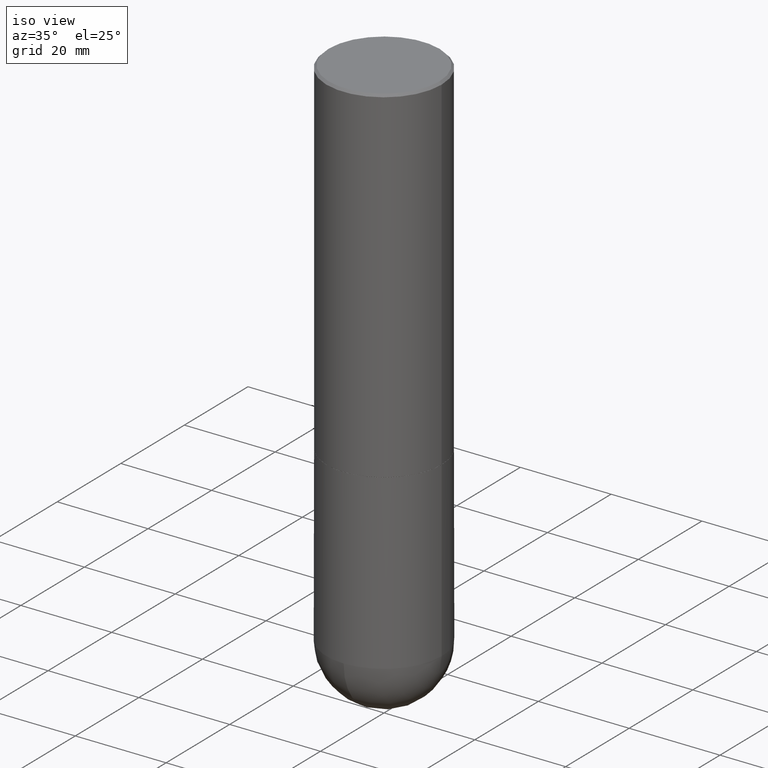
[diagram: clean part render]
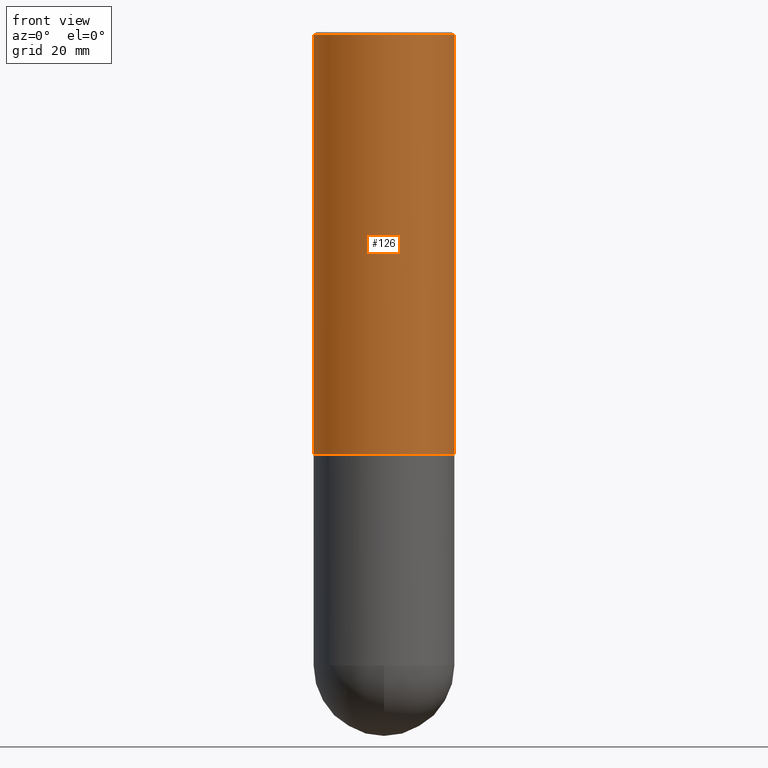
[diagram: tour spotlight — one face highlighted and labeled with its STEP entity id]
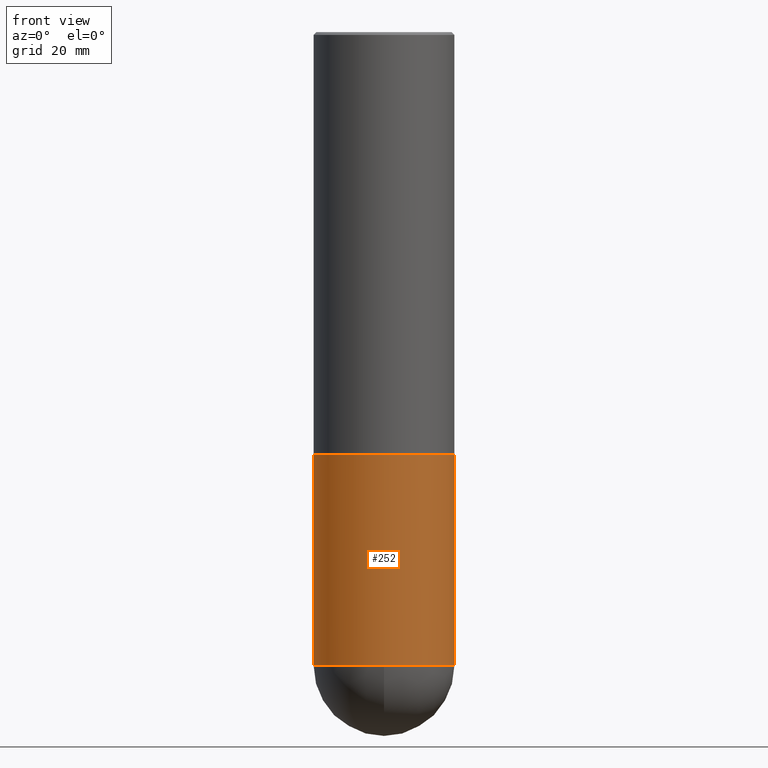
[diagram: tour spotlight — one face highlighted and labeled with its STEP entity id]
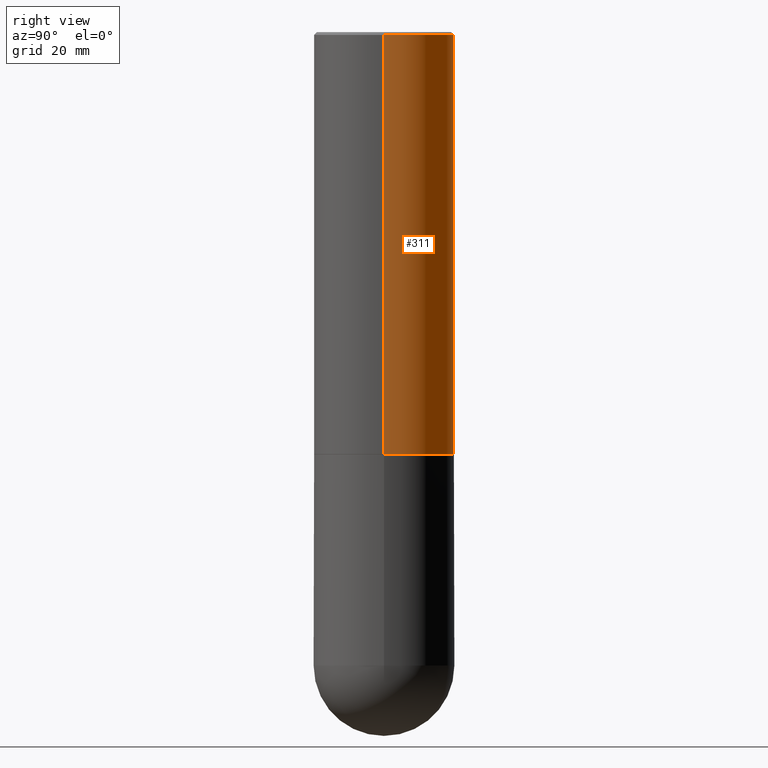
[diagram: tour spotlight — one face highlighted and labeled with its STEP entity id]
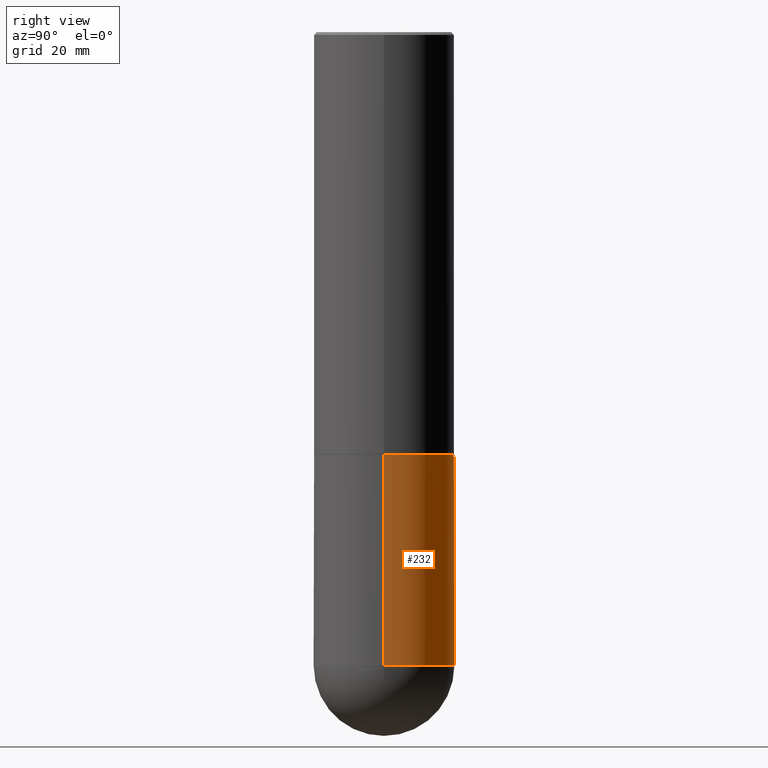
[diagram: tour spotlight — one face highlighted and labeled with its STEP entity id]
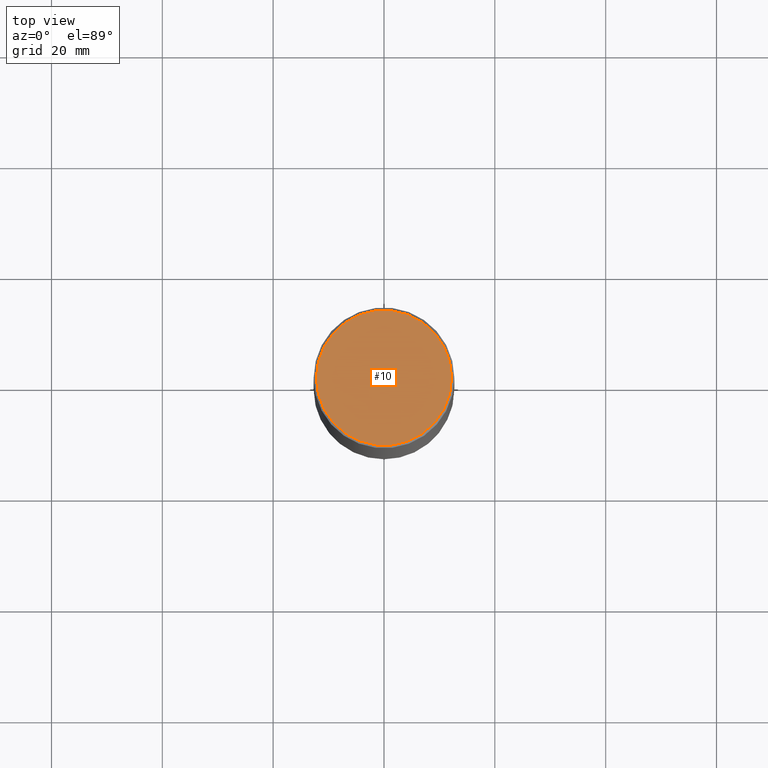
[diagram: tour spotlight — one face highlighted and labeled with its STEP entity id]
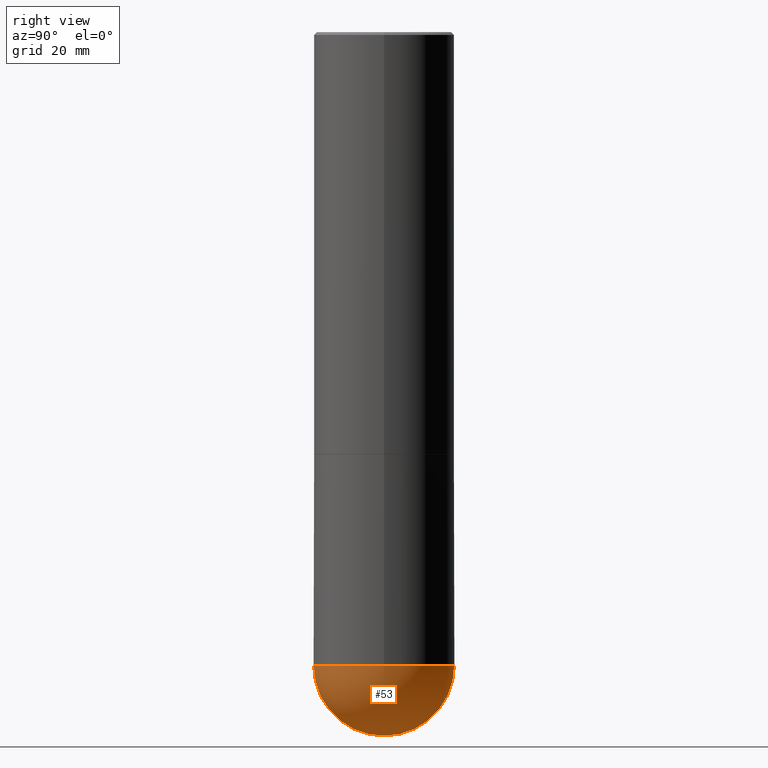
[diagram: tour spotlight — one face highlighted and labeled with its STEP entity id]
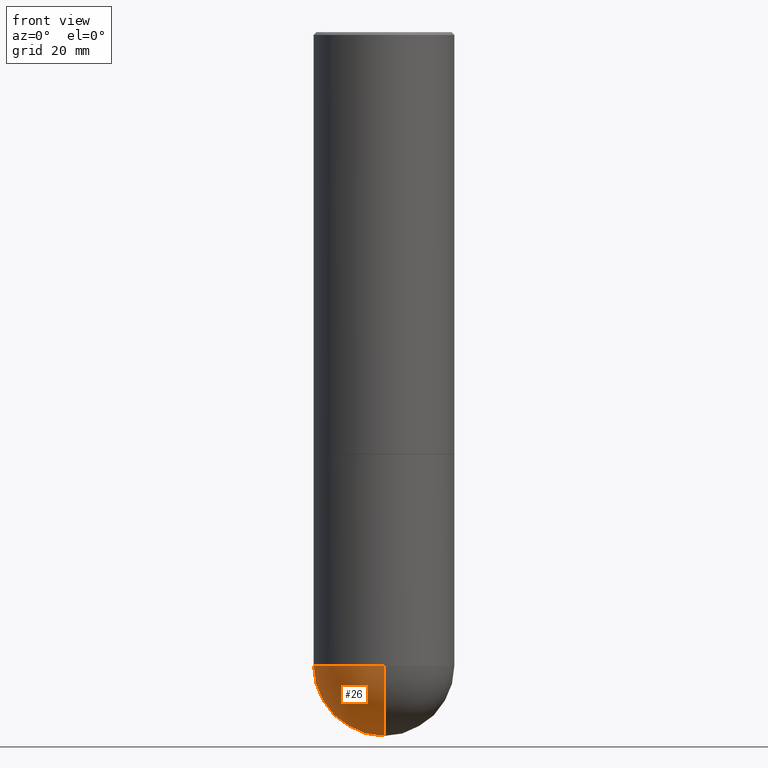
[diagram: tour spotlight — one face highlighted and labeled with its STEP entity id]
A machine part: a face-by-face anatomy tour. The part has 13 B-rep faces; the first image is the clean iso view, then the 7 largest visible faces are spotlighted one at a time (largest first), each with its STEP entity span.

Face 1 — front view, entity #126. In plain terms, the highlighted cylindrical surface (partial cylindrical patch) has radius 12.7 mm, axis along (-0, 0, 1).
Definition (entity closure, byte-faithful):
#2 = DIRECTION ( 'NONE',  ( 1.000000000000000000, -6.982962677686267499E-15, 4.876176775795935793E-29 ) ) ;
#20 = VERTEX_POINT ( 'NONE', #243 ) ;
#25 = VECTOR ( 'NONE', #66, 39.37007874015748143 ) ;
#38 = EDGE_CURVE ( 'NONE', #151, #20, #412, .T. ) ;
#66 = DIRECTION ( 'NONE',  ( -2.445468806185136877E-29, 3.491481338843145188E-15, 1.000000000000000000 ) ) ;
#70 = EDGE_CURVE ( 'NONE', #20, #152, #313, .T. ) ;
#71 = CARTESIAN_POINT ( 'NONE',  ( 0.5000000000000002220, -1.396243387403372986E-14, -2.999000000000000554 ) ) ;
#74 = AXIS2_PLACEMENT_3D ( 'NONE', #224, #103, #2 ) ;
#82 = AXIS2_PLACEMENT_3D ( 'NONE', #216, #193, #188 ) ;
#89 = ORIENTED_EDGE ( 'NONE', *, *, #345, .T. ) ;
#103 = DIRECTION ( 'NONE',  ( -2.445468806185136597E-29, 3.491481338843145583E-15, 1.000000000000000000 ) ) ;
#109 = CYLINDRICAL_SURFACE ( 'NONE', #74, 0.5000000000000001110 ) ;
#126 = ADVANCED_FACE ( 'NONE', ( #316 ), #109, .T. ) ;
#151 = VERTEX_POINT ( 'NONE', #248 ) ;
#152 = VERTEX_POINT ( 'NONE', #160 ) ;
#160 = CARTESIAN_POINT ( 'NONE',  ( 0.5000000000000000000, -3.500078625662629079E-15, -0.02000000000000010797 ) ) ;
#188 = DIRECTION ( 'NONE',  ( 1.000000000000000000, -6.982962677686267499E-15, 0.000000000000000000 ) ) ;
#193 = DIRECTION ( 'NONE',  ( -2.445468806185136597E-29, 3.491481338843145583E-15, 1.000000000000000000 ) ) ;
#216 = CARTESIAN_POINT ( 'NONE',  ( 7.333960949749226429E-29, -1.047095253519059492E-14, -2.999000000000000554 ) ) ;
#218 = VECTOR ( 'NONE', #333, 39.37007874015748143 ) ;
#224 = CARTESIAN_POINT ( 'NONE',  ( 0.000000000000000000, 0.000000000000000000, 0.000000000000000000 ) ) ;
#231 = CARTESIAN_POINT ( 'NONE',  ( 0.5000000000000001110, -3.491481338843134539E-15, 2.438088387897968457E-29 ) ) ;
#241 = EDGE_CURVE ( 'NONE', #151, #270, #245, .T. ) ;
#243 = CARTESIAN_POINT ( 'NONE',  ( -0.5000000000000000000, 3.421651712066270057E-15, -0.02000000000000010797 ) ) ;
#245 = CIRCLE ( 'NONE', #82, 0.5000000000000002220 ) ;
#248 = CARTESIAN_POINT ( 'NONE',  ( -0.5000000000000002220, -1.717677402183225026E-15, -2.999000000000000554 ) ) ;
#261 = ORIENTED_EDGE ( 'NONE', *, *, #38, .F. ) ;
#270 = VERTEX_POINT ( 'NONE', #71 ) ;
#292 = AXIS2_PLACEMENT_3D ( 'NONE', #371, #411, #404 ) ;
#303 = EDGE_LOOP ( 'NONE', ( #261, #364, #89, #363 ) ) ;
#313 = CIRCLE ( 'NONE', #292, 0.5000000000000000000 ) ;
#316 = FACE_OUTER_BOUND ( 'NONE', #303, .T. ) ;
#328 = LINE ( 'NONE', #231, #218 ) ;
#333 = DIRECTION ( 'NONE',  ( -2.445468806185136877E-29, 3.491481338843145188E-15, 1.000000000000000000 ) ) ;
#345 = EDGE_CURVE ( 'NONE', #270, #152, #328, .T. ) ;
#347 = CARTESIAN_POINT ( 'NONE',  ( -0.5000000000000001110, 3.552713678800501718E-15, -2.459467545127453732E-29 ) ) ;
#363 = ORIENTED_EDGE ( 'NONE', *, *, #70, .F. ) ;
#364 = ORIENTED_EDGE ( 'NONE', *, *, #241, .T. ) ;
#371 = CARTESIAN_POINT ( 'NONE',  ( 4.890937612370299433E-31, -6.982962677686328587E-17, -0.02000000000000010797 ) ) ;
#404 = DIRECTION ( 'NONE',  ( 1.000000000000000000, -6.982962677686266711E-15, 0.000000000000000000 ) ) ;
#411 = DIRECTION ( 'NONE',  ( -2.445468806185136597E-29, 3.491481338843145583E-15, 1.000000000000000000 ) ) ;
#412 = LINE ( 'NONE', #347, #25 ) ;

Face 2 — front view, entity #252. In plain terms, the highlighted cylindrical surface (partial cylindrical patch) has radius 12.7 mm, axis along (-0, 0, 1).
Definition (entity closure, byte-faithful):
#12 = DIRECTION ( 'NONE',  ( -2.445468806185136877E-29, 3.491481338843145188E-15, 1.000000000000000000 ) ) ;
#40 = AXIS2_PLACEMENT_3D ( 'NONE', #341, #308, #43 ) ;
#43 = DIRECTION ( 'NONE',  ( 1.000000000000000000, -6.982962677686266711E-15, 0.000000000000000000 ) ) ;
#73 = CARTESIAN_POINT ( 'NONE',  ( 0.5000000000000000000, -1.658453635950493077E-14, -4.500000000000000000 ) ) ;
#81 = CARTESIAN_POINT ( 'NONE',  ( -3.552713678800393250E-15, -0.5000000000000160982, -4.499999999999998224 ) ) ;
#87 = EDGE_LOOP ( 'NONE', ( #114, #202, #195, #362, #358 ) ) ;
#105 = EDGE_CURVE ( 'NONE', #296, #179, #191, .T. ) ;
#106 = CYLINDRICAL_SURFACE ( 'NONE', #129, 0.5000000000000000000 ) ;
#114 = ORIENTED_EDGE ( 'NONE', *, *, #192, .F. ) ;
#118 = LINE ( 'NONE', #170, #342 ) ;
#129 = AXIS2_PLACEMENT_3D ( 'NONE', #356, #388, #219 ) ;
#137 = CARTESIAN_POINT ( 'NONE',  ( 7.336406418555409790E-29, -1.047444401652943635E-14, -3.000000000000000444 ) ) ;
#144 = CARTESIAN_POINT ( 'NONE',  ( 0.5000000000000000000, -1.396592535537257129E-14, -3.000000000000000444 ) ) ;
#161 = FACE_OUTER_BOUND ( 'NONE', #87, .T. ) ;
#164 = DIRECTION ( 'NONE',  ( -2.445468806185136877E-29, 3.491481338843145188E-15, 1.000000000000000000 ) ) ;
#170 = CARTESIAN_POINT ( 'NONE',  ( 0.5000000000000000000, -3.491481338843133355E-15, 2.438088387897967896E-29 ) ) ;
#179 = VERTEX_POINT ( 'NONE', #73 ) ;
#191 = CIRCLE ( 'NONE', #40, 0.5000000000000000000 ) ;
#192 = EDGE_CURVE ( 'NONE', #275, #204, #223, .T. ) ;
#195 = ORIENTED_EDGE ( 'NONE', *, *, #105, .T. ) ;
#196 = CARTESIAN_POINT ( 'NONE',  ( 1.100460962783311469E-28, -1.571166602479415690E-14, -4.500000000000000000 ) ) ;
#202 = ORIENTED_EDGE ( 'NONE', *, *, #407, .T. ) ;
#203 = DIRECTION ( 'NONE',  ( 1.000000000000000000, -6.982962677686266711E-15, 0.000000000000000000 ) ) ;
#204 = VERTEX_POINT ( 'NONE', #319 ) ;
#208 = EDGE_CURVE ( 'NONE', #204, #402, #263, .T. ) ;
#219 = DIRECTION ( 'NONE',  ( 1.000000000000000000, -6.982962677686266711E-15, 4.876176775795935793E-29 ) ) ;
#223 = LINE ( 'NONE', #381, #321 ) ;
#237 = CIRCLE ( 'NONE', #301, 0.5000000000000000000 ) ;
#252 = ADVANCED_FACE ( 'NONE', ( #161 ), #106, .T. ) ;
#263 = CIRCLE ( 'NONE', #389, 0.5000000000000000000 ) ;
#275 = VERTEX_POINT ( 'NONE', #331 ) ;
#283 = DIRECTION ( 'NONE',  ( 1.000000000000000000, -6.982962677686266711E-15, 0.000000000000000000 ) ) ;
#288 = DIRECTION ( 'NONE',  ( -2.445468806185136597E-29, 3.491481338843145583E-15, 1.000000000000000000 ) ) ;
#296 = VERTEX_POINT ( 'NONE', #81 ) ;
#301 = AXIS2_PLACEMENT_3D ( 'NONE', #196, #302, #203 ) ;
#302 = DIRECTION ( 'NONE',  ( -2.445468806185136597E-29, 3.491481338843145583E-15, 1.000000000000000000 ) ) ;
#308 = DIRECTION ( 'NONE',  ( -2.445468806185136597E-29, 3.491481338843145583E-15, 1.000000000000000000 ) ) ;
#319 = CARTESIAN_POINT ( 'NONE',  ( -0.5000000000000000000, -9.540341341861294907E-15, -3.000000000000000444 ) ) ;
#321 = VECTOR ( 'NONE', #164, 39.37007874015748143 ) ;
#331 = CARTESIAN_POINT ( 'NONE',  ( -0.5000000000000000000, -9.540341341861298062E-15, -4.500000000000000000 ) ) ;
#335 = EDGE_CURVE ( 'NONE', #179, #402, #118, .T. ) ;
#341 = CARTESIAN_POINT ( 'NONE',  ( 1.100460962783311469E-28, -1.571166602479415690E-14, -4.500000000000000000 ) ) ;
#342 = VECTOR ( 'NONE', #12, 39.37007874015748143 ) ;
#356 = CARTESIAN_POINT ( 'NONE',  ( 0.000000000000000000, 0.000000000000000000, 0.000000000000000000 ) ) ;
#358 = ORIENTED_EDGE ( 'NONE', *, *, #208, .F. ) ;
#362 = ORIENTED_EDGE ( 'NONE', *, *, #335, .T. ) ;
#381 = CARTESIAN_POINT ( 'NONE',  ( -0.5000000000000000000, 3.552713678800500929E-15, -2.459467545127452891E-29 ) ) ;
#388 = DIRECTION ( 'NONE',  ( -2.445468806185136597E-29, 3.491481338843145583E-15, 1.000000000000000000 ) ) ;
#389 = AXIS2_PLACEMENT_3D ( 'NONE', #137, #288, #283 ) ;
#402 = VERTEX_POINT ( 'NONE', #144 ) ;
#407 = EDGE_CURVE ( 'NONE', #275, #296, #237, .T. ) ;

Face 3 — right view, entity #311. In plain terms, the highlighted cylindrical surface (partial cylindrical patch) has radius 12.7 mm, axis along (-0, 0, 1).
Definition (entity closure, byte-faithful):
#4 = AXIS2_PLACEMENT_3D ( 'NONE', #295, #390, #399 ) ;
#14 = CARTESIAN_POINT ( 'NONE',  ( 4.890937612370299433E-31, -6.982962677686328587E-17, -0.02000000000000010797 ) ) ;
#16 = FACE_OUTER_BOUND ( 'NONE', #294, .T. ) ;
#20 = VERTEX_POINT ( 'NONE', #243 ) ;
#25 = VECTOR ( 'NONE', #66, 39.37007874015748143 ) ;
#38 = EDGE_CURVE ( 'NONE', #151, #20, #412, .T. ) ;
#66 = DIRECTION ( 'NONE',  ( -2.445468806185136877E-29, 3.491481338843145188E-15, 1.000000000000000000 ) ) ;
#69 = CARTESIAN_POINT ( 'NONE',  ( 7.333960949749226429E-29, -1.047095253519059492E-14, -2.999000000000000554 ) ) ;
#71 = CARTESIAN_POINT ( 'NONE',  ( 0.5000000000000002220, -1.396243387403372986E-14, -2.999000000000000554 ) ) ;
#78 = DIRECTION ( 'NONE',  ( 1.000000000000000000, -6.982962677686266711E-15, 0.000000000000000000 ) ) ;
#136 = AXIS2_PLACEMENT_3D ( 'NONE', #14, #176, #78 ) ;
#151 = VERTEX_POINT ( 'NONE', #248 ) ;
#152 = VERTEX_POINT ( 'NONE', #160 ) ;
#160 = CARTESIAN_POINT ( 'NONE',  ( 0.5000000000000000000, -3.500078625662629079E-15, -0.02000000000000010797 ) ) ;
#162 = DIRECTION ( 'NONE',  ( -2.445468806185136597E-29, 3.491481338843145583E-15, 1.000000000000000000 ) ) ;
#163 = CIRCLE ( 'NONE', #136, 0.5000000000000000000 ) ;
#171 = EDGE_CURVE ( 'NONE', #270, #151, #281, .T. ) ;
#176 = DIRECTION ( 'NONE',  ( -2.445468806185136597E-29, 3.491481338843145583E-15, 1.000000000000000000 ) ) ;
#190 = DIRECTION ( 'NONE',  ( 1.000000000000000000, -6.982962677686267499E-15, 0.000000000000000000 ) ) ;
#218 = VECTOR ( 'NONE', #333, 39.37007874015748143 ) ;
#231 = CARTESIAN_POINT ( 'NONE',  ( 0.5000000000000001110, -3.491481338843134539E-15, 2.438088387897968457E-29 ) ) ;
#233 = ORIENTED_EDGE ( 'NONE', *, *, #171, .T. ) ;
#243 = CARTESIAN_POINT ( 'NONE',  ( -0.5000000000000000000, 3.421651712066270057E-15, -0.02000000000000010797 ) ) ;
#248 = CARTESIAN_POINT ( 'NONE',  ( -0.5000000000000002220, -1.717677402183225026E-15, -2.999000000000000554 ) ) ;
#270 = VERTEX_POINT ( 'NONE', #71 ) ;
#281 = CIRCLE ( 'NONE', #320, 0.5000000000000002220 ) ;
#294 = EDGE_LOOP ( 'NONE', ( #233, #368, #397, #330 ) ) ;
#295 = CARTESIAN_POINT ( 'NONE',  ( 0.000000000000000000, 0.000000000000000000, 0.000000000000000000 ) ) ;
#311 = ADVANCED_FACE ( 'NONE', ( #16 ), #401, .T. ) ;
#320 = AXIS2_PLACEMENT_3D ( 'NONE', #69, #162, #190 ) ;
#328 = LINE ( 'NONE', #231, #218 ) ;
#330 = ORIENTED_EDGE ( 'NONE', *, *, #345, .F. ) ;
#333 = DIRECTION ( 'NONE',  ( -2.445468806185136877E-29, 3.491481338843145188E-15, 1.000000000000000000 ) ) ;
#345 = EDGE_CURVE ( 'NONE', #270, #152, #328, .T. ) ;
#347 = CARTESIAN_POINT ( 'NONE',  ( -0.5000000000000001110, 3.552713678800501718E-15, -2.459467545127453732E-29 ) ) ;
#368 = ORIENTED_EDGE ( 'NONE', *, *, #38, .T. ) ;
#374 = EDGE_CURVE ( 'NONE', #152, #20, #163, .T. ) ;
#390 = DIRECTION ( 'NONE',  ( -2.445468806185136597E-29, 3.491481338843145583E-15, 1.000000000000000000 ) ) ;
#397 = ORIENTED_EDGE ( 'NONE', *, *, #374, .F. ) ;
#399 = DIRECTION ( 'NONE',  ( 1.000000000000000000, -6.982962677686267499E-15, 4.876176775795935793E-29 ) ) ;
#401 = CYLINDRICAL_SURFACE ( 'NONE', #4, 0.5000000000000001110 ) ;
#412 = LINE ( 'NONE', #347, #25 ) ;

Face 4 — right view, entity #232. In plain terms, the highlighted cylindrical surface (partial cylindrical patch) has radius 12.7 mm, axis along (-0, 0, 1).
Definition (entity closure, byte-faithful):
#1 = CYLINDRICAL_SURFACE ( 'NONE', #178, 0.5000000000000000000 ) ;
#5 = CARTESIAN_POINT ( 'NONE',  ( 3.491481338843242218E-15, 0.4999999999999841238, -4.500000000000001776 ) ) ;
#9 = CIRCLE ( 'NONE', #75, 0.5000000000000000000 ) ;
#11 = ORIENTED_EDGE ( 'NONE', *, *, #143, .T. ) ;
#12 = DIRECTION ( 'NONE',  ( -2.445468806185136877E-29, 3.491481338843145188E-15, 1.000000000000000000 ) ) ;
#37 = DIRECTION ( 'NONE',  ( 1.000000000000000000, -6.982962677686266711E-15, 0.000000000000000000 ) ) ;
#73 = CARTESIAN_POINT ( 'NONE',  ( 0.5000000000000000000, -1.658453635950493077E-14, -4.500000000000000000 ) ) ;
#75 = AXIS2_PLACEMENT_3D ( 'NONE', #352, #253, #254 ) ;
#116 = AXIS2_PLACEMENT_3D ( 'NONE', #139, #134, #37 ) ;
#118 = LINE ( 'NONE', #170, #342 ) ;
#134 = DIRECTION ( 'NONE',  ( -2.445468806185136597E-29, 3.491481338843145583E-15, 1.000000000000000000 ) ) ;
#138 = DIRECTION ( 'NONE',  ( 1.000000000000000000, -6.982962677686266711E-15, 4.876176775795935793E-29 ) ) ;
#139 = CARTESIAN_POINT ( 'NONE',  ( 7.336406418555409790E-29, -1.047444401652943635E-14, -3.000000000000000444 ) ) ;
#143 = EDGE_CURVE ( 'NONE', #179, #145, #376, .T. ) ;
#144 = CARTESIAN_POINT ( 'NONE',  ( 0.5000000000000000000, -1.396592535537257129E-14, -3.000000000000000444 ) ) ;
#145 = VERTEX_POINT ( 'NONE', #5 ) ;
#147 = ORIENTED_EDGE ( 'NONE', *, *, #222, .F. ) ;
#148 = AXIS2_PLACEMENT_3D ( 'NONE', #351, #353, #187 ) ;
#164 = DIRECTION ( 'NONE',  ( -2.445468806185136877E-29, 3.491481338843145188E-15, 1.000000000000000000 ) ) ;
#168 = EDGE_LOOP ( 'NONE', ( #229, #327, #147, #337, #11 ) ) ;
#170 = CARTESIAN_POINT ( 'NONE',  ( 0.5000000000000000000, -3.491481338843133355E-15, 2.438088387897967896E-29 ) ) ;
#178 = AXIS2_PLACEMENT_3D ( 'NONE', #286, #250, #138 ) ;
#179 = VERTEX_POINT ( 'NONE', #73 ) ;
#187 = DIRECTION ( 'NONE',  ( 1.000000000000000000, -6.982962677686266711E-15, 0.000000000000000000 ) ) ;
#192 = EDGE_CURVE ( 'NONE', #275, #204, #223, .T. ) ;
#204 = VERTEX_POINT ( 'NONE', #319 ) ;
#222 = EDGE_CURVE ( 'NONE', #402, #204, #377, .T. ) ;
#223 = LINE ( 'NONE', #381, #321 ) ;
#229 = ORIENTED_EDGE ( 'NONE', *, *, #265, .T. ) ;
#232 = ADVANCED_FACE ( 'NONE', ( #255 ), #1, .T. ) ;
#250 = DIRECTION ( 'NONE',  ( -2.445468806185136597E-29, 3.491481338843145583E-15, 1.000000000000000000 ) ) ;
#253 = DIRECTION ( 'NONE',  ( -2.445468806185136597E-29, 3.491481338843145583E-15, 1.000000000000000000 ) ) ;
#254 = DIRECTION ( 'NONE',  ( 1.000000000000000000, -6.982962677686266711E-15, 0.000000000000000000 ) ) ;
#255 = FACE_OUTER_BOUND ( 'NONE', #168, .T. ) ;
#265 = EDGE_CURVE ( 'NONE', #145, #275, #9, .T. ) ;
#275 = VERTEX_POINT ( 'NONE', #331 ) ;
#286 = CARTESIAN_POINT ( 'NONE',  ( 0.000000000000000000, 0.000000000000000000, 0.000000000000000000 ) ) ;
#319 = CARTESIAN_POINT ( 'NONE',  ( -0.5000000000000000000, -9.540341341861294907E-15, -3.000000000000000444 ) ) ;
#321 = VECTOR ( 'NONE', #164, 39.37007874015748143 ) ;
#327 = ORIENTED_EDGE ( 'NONE', *, *, #192, .T. ) ;
#331 = CARTESIAN_POINT ( 'NONE',  ( -0.5000000000000000000, -9.540341341861298062E-15, -4.500000000000000000 ) ) ;
#335 = EDGE_CURVE ( 'NONE', #179, #402, #118, .T. ) ;
#337 = ORIENTED_EDGE ( 'NONE', *, *, #335, .F. ) ;
#342 = VECTOR ( 'NONE', #12, 39.37007874015748143 ) ;
#351 = CARTESIAN_POINT ( 'NONE',  ( 1.100460962783311469E-28, -1.571166602479415690E-14, -4.500000000000000000 ) ) ;
#352 = CARTESIAN_POINT ( 'NONE',  ( 1.100460962783311469E-28, -1.571166602479415690E-14, -4.500000000000000000 ) ) ;
#353 = DIRECTION ( 'NONE',  ( -2.445468806185136597E-29, 3.491481338843145583E-15, 1.000000000000000000 ) ) ;
#376 = CIRCLE ( 'NONE', #148, 0.5000000000000000000 ) ;
#377 = CIRCLE ( 'NONE', #116, 0.5000000000000000000 ) ;
#381 = CARTESIAN_POINT ( 'NONE',  ( -0.5000000000000000000, 3.552713678800500929E-15, -2.459467545127452891E-29 ) ) ;
#402 = VERTEX_POINT ( 'NONE', #144 ) ;

Face 5 — top view, entity #10. In plain terms, the highlighted planar face has unit normal (0, -0, -1).
Definition (entity closure, byte-faithful):
#10 = ADVANCED_FACE ( 'NONE', ( #158 ), #153, .F. ) ;
#22 = DIRECTION ( 'NONE',  ( -1.000000000000000000, 6.982962677686265922E-15, -4.876176775795935793E-29 ) ) ;
#23 = EDGE_CURVE ( 'NONE', #298, #177, #325, .T. ) ;
#31 = CARTESIAN_POINT ( 'NONE',  ( 3.351822085289410309E-15, 0.4800000000000003708, -1.857322823473978811E-15 ) ) ;
#39 = AXIS2_PLACEMENT_3D ( 'NONE', #385, #42, #221 ) ;
#42 = DIRECTION ( 'NONE',  ( -2.445468806185136597E-29, 3.491481338843145583E-15, 1.000000000000000000 ) ) ;
#113 = EDGE_CURVE ( 'NONE', #177, #298, #262, .T. ) ;
#121 = EDGE_LOOP ( 'NONE', ( #394, #124 ) ) ;
#124 = ORIENTED_EDGE ( 'NONE', *, *, #23, .T. ) ;
#149 = CARTESIAN_POINT ( 'NONE',  ( 0.4800000000000003708, -3.396558832296484071E-15, -3.628235616585113699E-16 ) ) ;
#153 = PLANE ( 'NONE',  #405 ) ;
#158 = FACE_OUTER_BOUND ( 'NONE', #121, .T. ) ;
#177 = VERTEX_POINT ( 'NONE', #386 ) ;
#205 = AXIS2_PLACEMENT_3D ( 'NONE', #274, #214, #344 ) ;
#214 = DIRECTION ( 'NONE',  ( -2.445468806185136597E-29, 3.491481338843145583E-15, 1.000000000000000000 ) ) ;
#221 = DIRECTION ( 'NONE',  ( 1.000000000000000000, -6.982962677686266711E-15, 4.878011538933546479E-29 ) ) ;
#262 = CIRCLE ( 'NONE', #39, 0.4800000000000003708 ) ;
#274 = CARTESIAN_POINT ( 'NONE',  ( 8.872737021849368446E-45, -1.266791694823380303E-30, -3.628235616585349371E-16 ) ) ;
#277 = DIRECTION ( 'NONE',  ( 2.438088387897960049E-29, -3.491481338843145188E-15, -1.000000000000000000 ) ) ;
#298 = VERTEX_POINT ( 'NONE', #149 ) ;
#325 = CIRCLE ( 'NONE', #205, 0.4800000000000003708 ) ;
#344 = DIRECTION ( 'NONE',  ( 1.000000000000000000, -6.982962677686266711E-15, 4.878011538933546479E-29 ) ) ;
#385 = CARTESIAN_POINT ( 'NONE',  ( 8.872737021849368446E-45, -1.266791694823380303E-30, -3.628235616585349371E-16 ) ) ;
#386 = CARTESIAN_POINT ( 'NONE',  ( -0.4800000000000003708, 3.386736898677839197E-15, -3.628235616585585043E-16 ) ) ;
#394 = ORIENTED_EDGE ( 'NONE', *, *, #113, .T. ) ;
#405 = AXIS2_PLACEMENT_3D ( 'NONE', #31, #277, #22 ) ;

Face 6 — right view, entity #53. In plain terms, the highlighted spherical surface has radius 12.7 mm.
Definition (entity closure, byte-faithful):
#3 = AXIS2_PLACEMENT_3D ( 'NONE', #346, #380, #406 ) ;
#5 = CARTESIAN_POINT ( 'NONE',  ( 3.491481338843242218E-15, 0.4999999999999841238, -4.500000000000001776 ) ) ;
#7 = DIRECTION ( 'NONE',  ( 6.982962677686266711E-15, 1.000000000000000000, 0.000000000000000000 ) ) ;
#8 = DIRECTION ( 'NONE',  ( 1.000000000000000000, -6.982962677686265922E-15, 4.883557194083112340E-29 ) ) ;
#34 = CARTESIAN_POINT ( 'NONE',  ( 1.067348984991922956E-28, -1.618584839293420562E-14, -4.500000000000000000 ) ) ;
#40 = AXIS2_PLACEMENT_3D ( 'NONE', #341, #308, #43 ) ;
#43 = DIRECTION ( 'NONE',  ( 1.000000000000000000, -6.982962677686266711E-15, 0.000000000000000000 ) ) ;
#53 = ADVANCED_FACE ( 'NONE', ( #130 ), #339, .T. ) ;
#67 = CIRCLE ( 'NONE', #98, 0.5000000000000002220 ) ;
#73 = CARTESIAN_POINT ( 'NONE',  ( 0.5000000000000000000, -1.658453635950493077E-14, -4.500000000000000000 ) ) ;
#81 = CARTESIAN_POINT ( 'NONE',  ( -3.552713678800393250E-15, -0.5000000000000160982, -4.499999999999998224 ) ) ;
#83 = EDGE_CURVE ( 'NONE', #266, #296, #236, .T. ) ;
#91 = AXIS2_PLACEMENT_3D ( 'NONE', #269, #246, #213 ) ;
#98 = AXIS2_PLACEMENT_3D ( 'NONE', #34, #8, #7 ) ;
#105 = EDGE_CURVE ( 'NONE', #296, #179, #191, .T. ) ;
#119 = EDGE_LOOP ( 'NONE', ( #366, #391, #207, #175 ) ) ;
#130 = FACE_OUTER_BOUND ( 'NONE', #119, .T. ) ;
#143 = EDGE_CURVE ( 'NONE', #179, #145, #376, .T. ) ;
#145 = VERTEX_POINT ( 'NONE', #5 ) ;
#148 = AXIS2_PLACEMENT_3D ( 'NONE', #351, #353, #187 ) ;
#175 = ORIENTED_EDGE ( 'NONE', *, *, #105, .F. ) ;
#179 = VERTEX_POINT ( 'NONE', #73 ) ;
#187 = DIRECTION ( 'NONE',  ( 1.000000000000000000, -6.982962677686266711E-15, 0.000000000000000000 ) ) ;
#191 = CIRCLE ( 'NONE', #40, 0.5000000000000000000 ) ;
#207 = ORIENTED_EDGE ( 'NONE', *, *, #143, .F. ) ;
#213 = DIRECTION ( 'NONE',  ( 6.982962677686265922E-15, 1.000000000000000000, -3.278217592397114284E-15 ) ) ;
#220 = EDGE_CURVE ( 'NONE', #266, #145, #67, .T. ) ;
#236 = CIRCLE ( 'NONE', #3, 0.5000000000000002220 ) ;
#246 = DIRECTION ( 'NONE',  ( -1.000000000000000000, 6.982962677686265922E-15, -4.883557194083113462E-29 ) ) ;
#266 = VERTEX_POINT ( 'NONE', #354 ) ;
#269 = CARTESIAN_POINT ( 'NONE',  ( 1.067348984991922956E-28, -1.618584839293420562E-14, -4.500000000000000000 ) ) ;
#296 = VERTEX_POINT ( 'NONE', #81 ) ;
#308 = DIRECTION ( 'NONE',  ( -2.445468806185136597E-29, 3.491481338843145583E-15, 1.000000000000000000 ) ) ;
#339 = SPHERICAL_SURFACE ( 'NONE', #91, 0.5000000000000002220 ) ;
#341 = CARTESIAN_POINT ( 'NONE',  ( 1.100460962783311469E-28, -1.571166602479415690E-14, -4.500000000000000000 ) ) ;
#346 = CARTESIAN_POINT ( 'NONE',  ( 1.067348984991922956E-28, -1.618584839293420562E-14, -4.500000000000000000 ) ) ;
#351 = CARTESIAN_POINT ( 'NONE',  ( 1.100460962783311469E-28, -1.571166602479415690E-14, -4.500000000000000000 ) ) ;
#353 = DIRECTION ( 'NONE',  ( -2.445468806185136597E-29, 3.491481338843145583E-15, 1.000000000000000000 ) ) ;
#354 = CARTESIAN_POINT ( 'NONE',  ( 1.191760341024128201E-28, -1.790097289237709482E-14, -5.000000000000000000 ) ) ;
#366 = ORIENTED_EDGE ( 'NONE', *, *, #83, .F. ) ;
#376 = CIRCLE ( 'NONE', #148, 0.5000000000000000000 ) ;
#380 = DIRECTION ( 'NONE',  ( -1.000000000000000000, 7.105427357601001070E-15, -4.926315508542082329E-29 ) ) ;
#391 = ORIENTED_EDGE ( 'NONE', *, *, #220, .T. ) ;
#406 = DIRECTION ( 'NONE',  ( -7.105427357601001859E-15, -1.000000000000000000, 0.000000000000000000 ) ) ;

Face 7 — front view, entity #26. In plain terms, the highlighted spherical surface has radius 12.7 mm.
Definition (entity closure, byte-faithful):
#3 = AXIS2_PLACEMENT_3D ( 'NONE', #346, #380, #406 ) ;
#5 = CARTESIAN_POINT ( 'NONE',  ( 3.491481338843242218E-15, 0.4999999999999841238, -4.500000000000001776 ) ) ;
#7 = DIRECTION ( 'NONE',  ( 6.982962677686266711E-15, 1.000000000000000000, 0.000000000000000000 ) ) ;
#8 = DIRECTION ( 'NONE',  ( 1.000000000000000000, -6.982962677686265922E-15, 4.883557194083112340E-29 ) ) ;
#9 = CIRCLE ( 'NONE', #75, 0.5000000000000000000 ) ;
#19 = EDGE_LOOP ( 'NONE', ( #247, #112, #84, #47 ) ) ;
#26 = ADVANCED_FACE ( 'NONE', ( #65 ), #310, .T. ) ;
#34 = CARTESIAN_POINT ( 'NONE',  ( 1.067348984991922956E-28, -1.618584839293420562E-14, -4.500000000000000000 ) ) ;
#47 = ORIENTED_EDGE ( 'NONE', *, *, #265, .F. ) ;
#65 = FACE_OUTER_BOUND ( 'NONE', #19, .T. ) ;
#67 = CIRCLE ( 'NONE', #98, 0.5000000000000002220 ) ;
#75 = AXIS2_PLACEMENT_3D ( 'NONE', #352, #253, #254 ) ;
#81 = CARTESIAN_POINT ( 'NONE',  ( -3.552713678800393250E-15, -0.5000000000000160982, -4.499999999999998224 ) ) ;
#83 = EDGE_CURVE ( 'NONE', #266, #296, #236, .T. ) ;
#84 = ORIENTED_EDGE ( 'NONE', *, *, #407, .F. ) ;
#98 = AXIS2_PLACEMENT_3D ( 'NONE', #34, #8, #7 ) ;
#112 = ORIENTED_EDGE ( 'NONE', *, *, #83, .T. ) ;
#127 = DIRECTION ( 'NONE',  ( 6.982962677686265922E-15, 1.000000000000000000, -3.278217592397114284E-15 ) ) ;
#145 = VERTEX_POINT ( 'NONE', #5 ) ;
#196 = CARTESIAN_POINT ( 'NONE',  ( 1.100460962783311469E-28, -1.571166602479415690E-14, -4.500000000000000000 ) ) ;
#203 = DIRECTION ( 'NONE',  ( 1.000000000000000000, -6.982962677686266711E-15, 0.000000000000000000 ) ) ;
#217 = AXIS2_PLACEMENT_3D ( 'NONE', #379, #282, #127 ) ;
#220 = EDGE_CURVE ( 'NONE', #266, #145, #67, .T. ) ;
#236 = CIRCLE ( 'NONE', #3, 0.5000000000000002220 ) ;
#237 = CIRCLE ( 'NONE', #301, 0.5000000000000000000 ) ;
#247 = ORIENTED_EDGE ( 'NONE', *, *, #220, .F. ) ;
#253 = DIRECTION ( 'NONE',  ( -2.445468806185136597E-29, 3.491481338843145583E-15, 1.000000000000000000 ) ) ;
#254 = DIRECTION ( 'NONE',  ( 1.000000000000000000, -6.982962677686266711E-15, 0.000000000000000000 ) ) ;
#265 = EDGE_CURVE ( 'NONE', #145, #275, #9, .T. ) ;
#266 = VERTEX_POINT ( 'NONE', #354 ) ;
#275 = VERTEX_POINT ( 'NONE', #331 ) ;
#282 = DIRECTION ( 'NONE',  ( -1.000000000000000000, 6.982962677686265922E-15, -4.883557194083113462E-29 ) ) ;
#296 = VERTEX_POINT ( 'NONE', #81 ) ;
#301 = AXIS2_PLACEMENT_3D ( 'NONE', #196, #302, #203 ) ;
#302 = DIRECTION ( 'NONE',  ( -2.445468806185136597E-29, 3.491481338843145583E-15, 1.000000000000000000 ) ) ;
#310 = SPHERICAL_SURFACE ( 'NONE', #217, 0.5000000000000002220 ) ;
#331 = CARTESIAN_POINT ( 'NONE',  ( -0.5000000000000000000, -9.540341341861298062E-15, -4.500000000000000000 ) ) ;
#346 = CARTESIAN_POINT ( 'NONE',  ( 1.067348984991922956E-28, -1.618584839293420562E-14, -4.500000000000000000 ) ) ;
#352 = CARTESIAN_POINT ( 'NONE',  ( 1.100460962783311469E-28, -1.571166602479415690E-14, -4.500000000000000000 ) ) ;
#354 = CARTESIAN_POINT ( 'NONE',  ( 1.191760341024128201E-28, -1.790097289237709482E-14, -5.000000000000000000 ) ) ;
#379 = CARTESIAN_POINT ( 'NONE',  ( 1.067348984991922956E-28, -1.618584839293420562E-14, -4.500000000000000000 ) ) ;
#380 = DIRECTION ( 'NONE',  ( -1.000000000000000000, 7.105427357601001070E-15, -4.926315508542082329E-29 ) ) ;
#406 = DIRECTION ( 'NONE',  ( -7.105427357601001859E-15, -1.000000000000000000, 0.000000000000000000 ) ) ;
#407 = EDGE_CURVE ( 'NONE', #275, #296, #237, .T. ) ;